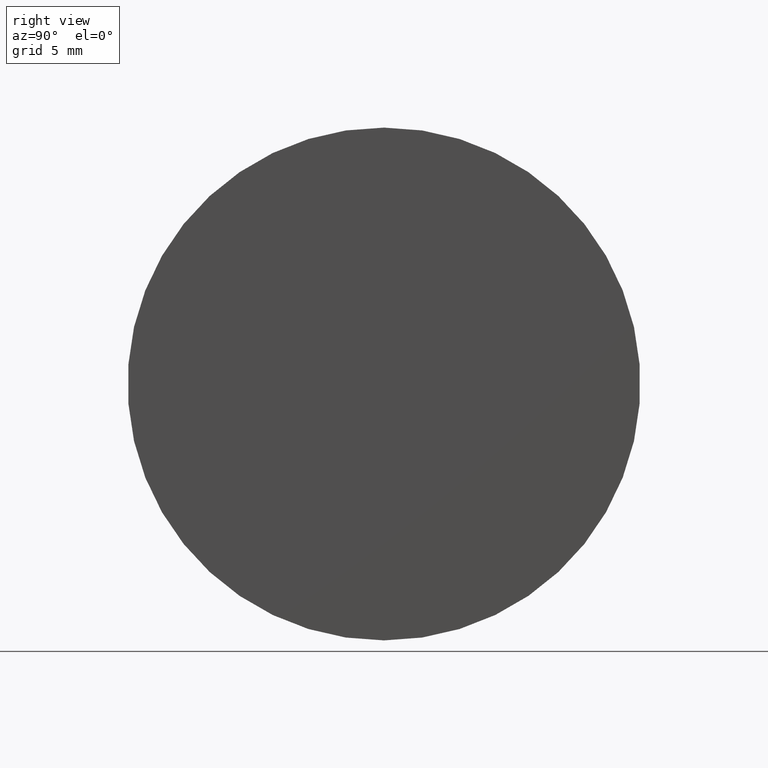
[diagram: clean part render]
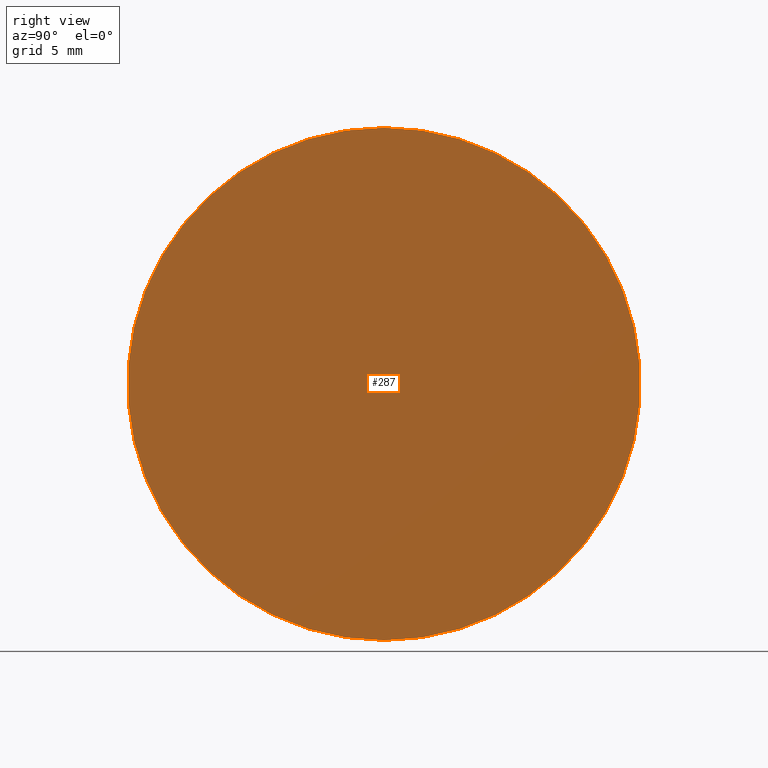
[diagram: same view with one face highlighted and labeled with its STEP entity id]
A machine part, right view. The second image highlights one B-rep face of the part: STEP entity #287.
In plain terms, the highlighted planar face has unit normal (-1, 0, -0).
Its self-contained STEP definition (entity closure, byte-faithful):
#11 = DIRECTION ( 'NONE',  ( -1.000000000000000000, -0.0000000000000000000, -0.0000000000000000000 ) ) ;
#18 = CIRCLE ( 'NONE', #55, 20.00000000000019500 ) ;
#27 = ORIENTED_EDGE ( 'NONE', *, *, #268, .F. ) ;
#55 = AXIS2_PLACEMENT_3D ( 'NONE', #203, #230, #74 ) ;
#67 = VERTEX_POINT ( 'NONE', #315 ) ;
#74 = DIRECTION ( 'NONE',  ( 0.0000000000000000000, 0.0000000000000000000, 1.000000000000000000 ) ) ;
#87 = AXIS2_PLACEMENT_3D ( 'NONE', #303, #129, #103 ) ;
#103 = DIRECTION ( 'NONE',  ( -0.0000000000000000000, 0.0000000000000000000, 1.000000000000000000 ) ) ;
#113 = CARTESIAN_POINT ( 'NONE',  ( 661.9090846041468700, 0.0000000000000000000, 20.00000000000019500 ) ) ;
#129 = DIRECTION ( 'NONE',  ( -1.000000000000000000, 0.0000000000000000000, -0.0000000000000000000 ) ) ;
#150 = EDGE_LOOP ( 'NONE', ( #27, #304 ) ) ;
#151 = CARTESIAN_POINT ( 'NONE',  ( 661.9090846041468700, 0.0000000000000000000, 0.0000000000000000000 ) ) ;
#172 = DIRECTION ( 'NONE',  ( 0.0000000000000000000, 0.0000000000000000000, 1.000000000000000000 ) ) ;
#184 = VERTEX_POINT ( 'NONE', #113 ) ;
#199 = AXIS2_PLACEMENT_3D ( 'NONE', #151, #11, #172 ) ;
#203 = CARTESIAN_POINT ( 'NONE',  ( 661.9090846041468700, 0.0000000000000000000, 0.0000000000000000000 ) ) ;
#207 = CIRCLE ( 'NONE', #199, 20.00000000000019500 ) ;
#230 = DIRECTION ( 'NONE',  ( -1.000000000000000000, -0.0000000000000000000, -0.0000000000000000000 ) ) ;
#268 = EDGE_CURVE ( 'NONE', #184, #67, #18, .T. ) ;
#272 = EDGE_CURVE ( 'NONE', #67, #184, #207, .T. ) ;
#273 = FACE_OUTER_BOUND ( 'NONE', #150, .T. ) ;
#287 = ADVANCED_FACE ( 'NONE', ( #273 ), #302, .F. ) ;
#302 = PLANE ( 'NONE',  #87 ) ;
#303 = CARTESIAN_POINT ( 'NONE',  ( 661.9090846041468700, 0.0000000000000000000, 0.0000000000000000000 ) ) ;
#304 = ORIENTED_EDGE ( 'NONE', *, *, #272, .F. ) ;
#315 = CARTESIAN_POINT ( 'NONE',  ( 661.9090846041468700, 2.449293598294730200E-015, -20.00000000000019500 ) ) ;